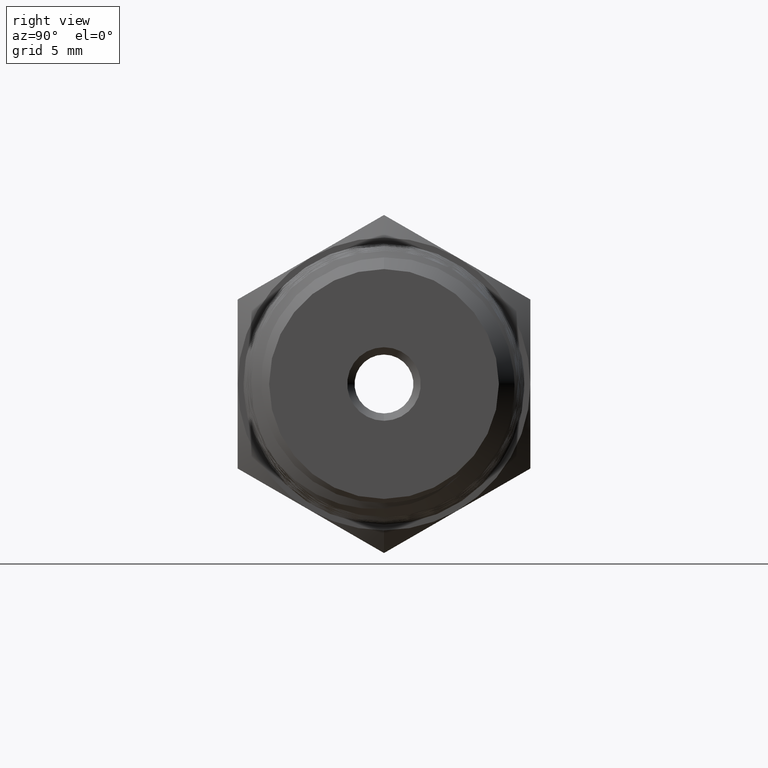
[diagram: clean part render]
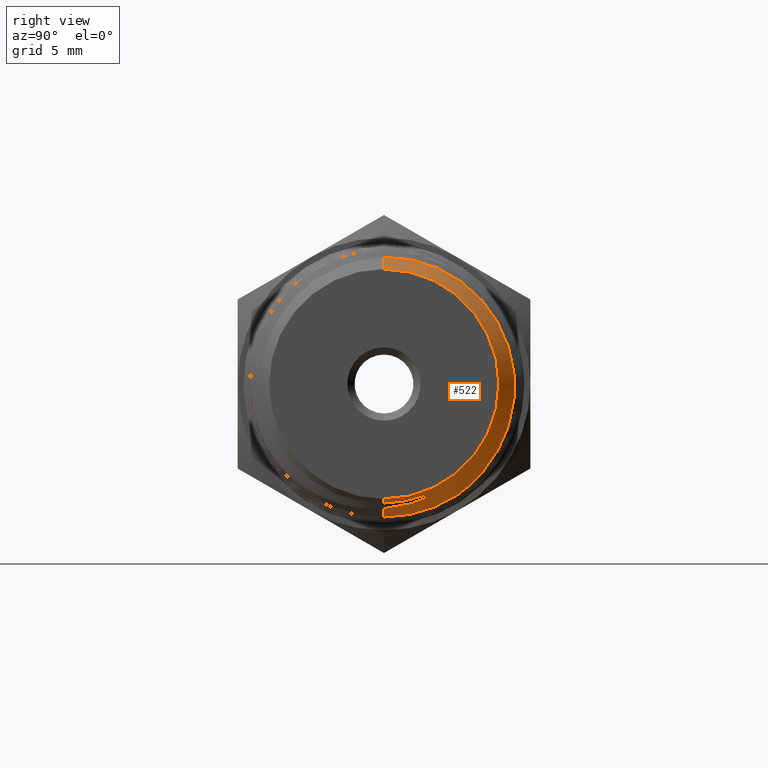
[diagram: same view with one face highlighted and labeled with its STEP entity id]
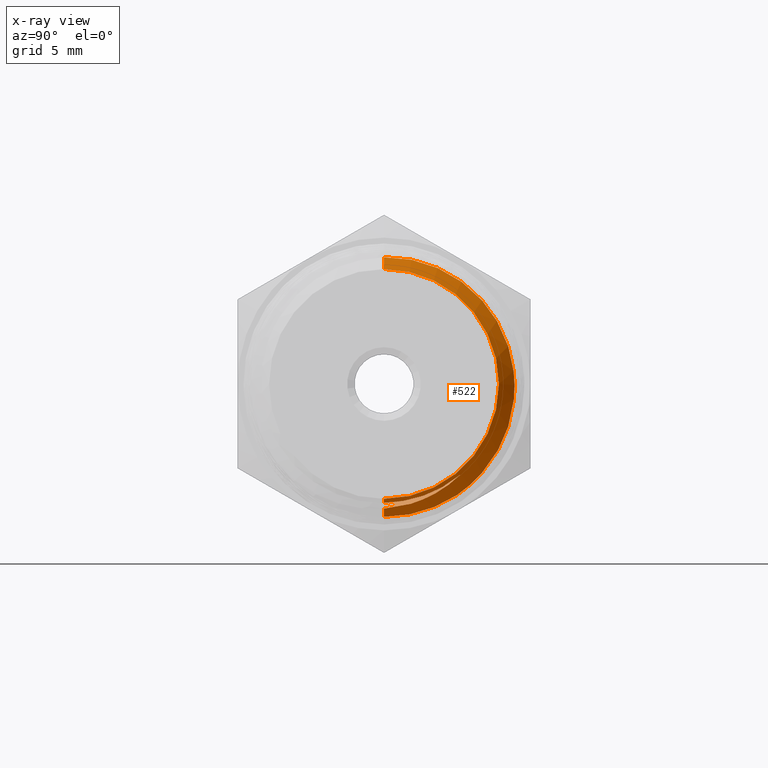
[diagram: x-ray of the same camera — body ghosted, the highlighted face saturated]
A machine part, right view. The second image highlights one B-rep face of the part: STEP entity #522.
The next image is the same camera in x-ray: the body ghosted, the highlighted face saturated — about 0% of this face is hidden behind the body in this view.
In plain terms, the highlighted conical surface has half-angle 45 deg.
Its self-contained STEP definition (entity closure, byte-faithful):
#33 = CARTESIAN_POINT ( 'NONE',  ( -0.04030060673841390217, 0.2491864924186022734, 0.2926378813395275613 ) ) ;
#151 = ORIENTED_EDGE ( 'NONE', *, *, #13604, .F. ) ;
#182 = CARTESIAN_POINT ( 'NONE',  ( -0.04659377315465841607, 0.3906197319101896159, 0.003791174174266546959 ) ) ;
#222 = CARTESIAN_POINT ( 'NONE',  ( -0.04888859972482670346, 0.3744851305482472248, -0.1189710544866498243 ) ) ;
#228 = B_SPLINE_CURVE_WITH_KNOTS ( 'NONE', 3,
 ( #2114, #13905, #1036, #6340, #8666, #5356, #11821, #6477, #7421, #990, #13952, #7513, #9595, #33, #9496, #4183, #11675, #5260, #2070, #9548, #9779, #13061, #8851, #12055, #182, #5591, #7700, #6617, #12103, #13200, #222, #10920, #3396, #6707, #7788, #308, #1267, #11006, #3354, #10872, #10964, #8764 ),
 .UNSPECIFIED., .F., .F.,
 ( 4, 2, 2, 2, 2, 2, 2, 2, 2, 2, 2, 2, 2, 2, 2, 2, 2, 2, 2, 2, 4 ),
 ( 0.03059194525146081631, 0.03137712472864505331, 0.03216230420582929378, 0.03373266316019777472, 0.03451784263738201519, 0.03530302211456625566, 0.03687338106893472967, 0.03844374002330321061, 0.04001409897767168461, 0.04158445793204016555, 0.04315481688640863955, 0.04472517584077712050, 0.04629553479514560144, 0.04708071427232984191, 0.04786589374951408238, 0.04943625270388256332, 0.05022143218106679685, 0.05100661165825104426, 0.05257697061261951826, 0.05414732956698799227, 0.05571768852135647321 ),
 .UNSPECIFIED. ) ;
#308 = CARTESIAN_POINT ( 'NONE',  ( -0.05082934280718694187, 0.3322672017545773571, -0.2133694554806749022 ) ) ;
#377 = CARTESIAN_POINT ( 'NONE',  ( -0.02166325693225363419, 0.1037695234988178367, -0.3507481977778851845 ) ) ;
#493 = CARTESIAN_POINT ( 'NONE',  ( -1.390232547146580598E-16, 4.041677008808863499E-17, -0.3434999999999999720 ) ) ;
#497 = CARTESIAN_POINT ( 'NONE',  ( -0.01093724804976844468, 0.05572696181799284554, -0.3500289538475765405 ) ) ;
#522 = ADVANCED_FACE ( 'NONE', ( #13951 ), #3871, .T. ) ;
#834 = CARTESIAN_POINT ( 'NONE',  ( -0.03512519437966415969, -1.088470684975604861E-16, 0.3786251943796643538 ) ) ;
#869 = CARTESIAN_POINT ( 'NONE',  ( -3.414809992080329023E-17, -3.791200677927629740E-33, 1.034064367020310434E-16 ) ) ;
#871 = ORIENTED_EDGE ( 'NONE', *, *, #11292, .F. ) ;
#990 = CARTESIAN_POINT ( 'NONE',  ( -0.03832131779553908657, 0.1612696905895363297, 0.3462483297272380689 ) ) ;
#1036 = CARTESIAN_POINT ( 'NONE',  ( -0.03553356370992067498, 0.02083672818344544861, 0.3786031149498791382 ) ) ;
#1083 = CARTESIAN_POINT ( 'NONE',  ( -0.01093724804976844468, 0.05572696181799284554, -0.3500289538475765405 ) ) ;
#1182 = VERTEX_POINT ( 'NONE', #4907 ) ;
#1267 = CARTESIAN_POINT ( 'NONE',  ( -0.05119880738211420035, 0.3209687871930754777, -0.2306298080186578725 ) ) ;
#1335 = DIRECTION ( 'NONE',  ( -0.7071067811865489050, -1.298934084353236847E-16, 0.7071067811865460184 ) ) ;
#1375 = CARTESIAN_POINT ( 'NONE',  ( 7.072705487305145467E-17, -3.791200677927629740E-33, 0.3435000000000001941 ) ) ;
#1408 = B_SPLINE_CURVE_WITH_KNOTS ( 'NONE', 3,
 ( #497, #8012, #1580, #5908 ),
 .UNSPECIFIED., .F., .F.,
 ( 4, 4 ),
 ( 0.000000000000000000, 0.001417107997962201073 ),
 .UNSPECIFIED. ) ;
#1469 = CARTESIAN_POINT ( 'NONE',  ( -0.01392559479671466940, 0.1967579360385992848, -0.2991500319060032553 ) ) ;
#1580 = CARTESIAN_POINT ( 'NONE',  ( -0.01172161582007858090, 0.01859020080757724930, -0.3552216158200782736 ) ) ;
#2070 = CARTESIAN_POINT ( 'NONE',  ( -0.04308187170701759799, 0.3418150149543751626, 0.1817563351020619056 ) ) ;
#2114 = CARTESIAN_POINT ( 'NONE',  ( -0.03512519437966415969, -1.088470684975604861E-16, 0.3786251943796643538 ) ) ;
#2278 = CIRCLE ( 'NONE', #13547, 0.3973881076167148918 ) ;
#2536 = VECTOR ( 'NONE', #1335, 39.37007874015748854 ) ;
#2543 = EDGE_CURVE ( 'NONE', #5152, #5169, #10383, .T. ) ;
#2603 = EDGE_CURVE ( 'NONE', #5648, #7325, #12832, .T. ) ;
#3232 = CARTESIAN_POINT ( 'NONE',  ( 7.072705487305150398E-17, -4.949542387868817801E-18, 0.3435000000000002496 ) ) ;
#3242 = CARTESIAN_POINT ( 'NONE',  ( -0.01211113930622502270, -3.628235616585349741E-17, -0.3556111393062247328 ) ) ;
#3265 = CARTESIAN_POINT ( 'NONE',  ( -0.01082672034998280117, 0.1766656570381449631, -0.3088191119013708463 ) ) ;
#3277 = VERTEX_POINT ( 'NONE', #3232 ) ;
#3354 = CARTESIAN_POINT ( 'NONE',  ( -0.05233483519599250317, 0.2819471108017557182, -0.2786154047594776029 ) ) ;
#3396 = CARTESIAN_POINT ( 'NONE',  ( -0.04967176585298522379, 0.3603147840324332773, -0.1576853039726890393 ) ) ;
#3423 = EDGE_CURVE ( 'NONE', #3277, #9002, #12446, .T. ) ;
#3554 = CARTESIAN_POINT ( 'NONE',  ( -0.02320799002363415492, 0.08377496720900971805, -0.3576381742715165069 ) ) ;
#3632 = CARTESIAN_POINT ( 'NONE',  ( -0.01855947295215877244, 0.1425570709624661148, -0.3334857590831016294 ) ) ;
#3685 = ORIENTED_EDGE ( 'NONE', *, *, #10786, .F. ) ;
#3824 = ORIENTED_EDGE ( 'NONE', *, *, #8363, .T. ) ;
#3871 = CONICAL_SURFACE ( 'NONE', #6432, 0.3435000000000000275, 0.7853981633974459475 ) ;
#4036 = VECTOR ( 'NONE', #4322, 39.37007874015748854 ) ;
#4140 = CARTESIAN_POINT ( 'NONE',  ( -1.390232547146580105E-16, 4.206661755071158813E-17, -0.3434999999999999165 ) ) ;
#4161 = DIRECTION ( 'NONE',  ( -3.053134055134053237E-16, 0.000000000000000000, -1.000000000000000000 ) ) ;
#4183 = CARTESIAN_POINT ( 'NONE',  ( -0.04148264045724359833, 0.2940110216749465821, 0.2493905619800215745 ) ) ;
#4322 = DIRECTION ( 'NONE',  ( -0.7071067811865493491, -4.329780281177457185E-17, -0.7071067811865455743 ) ) ;
#4409 = CARTESIAN_POINT ( 'NONE',  ( -0.05388810761671514876, -9.899084775737700313E-18, 1.198591983551632204E-16 ) ) ;
#4730 = CARTESIAN_POINT ( 'NONE',  ( -1.390232547146580105E-16, 4.206661755071158813E-17, -0.3434999999999999165 ) ) ;
#4744 = EDGE_CURVE ( 'NONE', #5169, #1182, #2278, .T. ) ;
#4907 = CARTESIAN_POINT ( 'NONE',  ( -0.05388810761671529448, 0.2181741977012518485, -0.3321405237736111959 ) ) ;
#5152 = VERTEX_POINT ( 'NONE', #12330 ) ;
#5169 = VERTEX_POINT ( 'NONE', #5907 ) ;
#5184 = ORIENTED_EDGE ( 'NONE', *, *, #3423, .F. ) ;
#5260 = CARTESIAN_POINT ( 'NONE',  ( -0.04268421239342090612, 0.3310991432607293117, 0.1998465037570916203 ) ) ;
#5356 = CARTESIAN_POINT ( 'NONE',  ( -0.03673324534147263259, 0.08249464495620717486, 0.3717489590352438533 ) ) ;
#5457 = CARTESIAN_POINT ( 'NONE',  ( -0.01090092528629496398, 0.1178037733599893722, -0.3346307213449989382 ) ) ;
#5493 = DIRECTION ( 'NONE',  ( -3.007597545875435086E-16, 0.000000000000000000, -1.000000000000000000 ) ) ;
#5591 = CARTESIAN_POINT ( 'NONE',  ( -0.04716491437343509757, 0.3898581829994952619, -0.02712787306494755107 ) ) ;
#5648 = VERTEX_POINT ( 'NONE', #12220 ) ;
#5907 = CARTESIAN_POINT ( 'NONE',  ( -0.05388810761671526672, 3.876692262546568802E-17, -0.3973881076167147808 ) ) ;
#5908 = CARTESIAN_POINT ( 'NONE',  ( -0.01211113930622502270, -3.628235616585349741E-17, -0.3556111393062247328 ) ) ;
#6312 = DIRECTION ( 'NONE',  ( -1.000000000000000000, -1.836970198721021306E-16, 3.053134055134053237E-16 ) ) ;
#6340 = CARTESIAN_POINT ( 'NONE',  ( -0.03594005999296892573, 0.04158863795596287605, 0.3772972167839771518 ) ) ;
#6396 = CARTESIAN_POINT ( 'NONE',  ( -0.01089390740658919589, 0.1328646563684411919, -0.3289379395411542450 ) ) ;
#6432 = AXIS2_PLACEMENT_3D ( 'NONE', #11697, #6312, #11793 ) ;
#6477 = CARTESIAN_POINT ( 'NONE',  ( -0.03771454844109568133, 0.1321812102770482389, 0.3577147957243693721 ) ) ;
#6617 = CARTESIAN_POINT ( 'NONE',  ( -0.04773506180432279811, 0.3870352827413255370, -0.05810687976132099253 ) ) ;
#6707 = CARTESIAN_POINT ( 'NONE',  ( -0.05006491648732609018, 0.3518651247201877164, -0.1766115475065730966 ) ) ;
#6716 = ORIENTED_EDGE ( 'NONE', *, *, #4744, .T. ) ;
#6776 = CARTESIAN_POINT ( 'NONE',  ( -0.02920456655433211618, -9.604153102725925531E-17, -0.3727045665543317066 ) ) ;
#6817 = CARTESIAN_POINT ( 'NONE',  ( -0.01236127934475715270, 0.2132604443011113515, -0.2856846834429576099 ) ) ;
#7113 = CARTESIAN_POINT ( 'NONE',  ( -0.01093724804976844468, 0.05572696181799284554, -0.3500289538475765405 ) ) ;
#7325 = VERTEX_POINT ( 'NONE', #7113 ) ;
#7336 = VERTEX_POINT ( 'NONE', #3242 ) ;
#7421 = CARTESIAN_POINT ( 'NONE',  ( -0.03791646629470977331, 0.1420090478418409297, 0.3541472170022263999 ) ) ;
#7461 = EDGE_CURVE ( 'NONE', #8589, #3277, #12155, .T. ) ;
#7475 = CARTESIAN_POINT ( 'NONE',  ( -0.01075693484395628952, 0.2285839789948817258, -0.2706424586643832453 ) ) ;
#7513 = CARTESIAN_POINT ( 'NONE',  ( -0.03912902502530326426, 0.1982749516817654545, 0.3278990138455385450 ) ) ;
#7700 = CARTESIAN_POINT ( 'NONE',  ( -0.04735412003127962427, 0.3891947773401027155, -0.03744615352524040264 ) ) ;
#7788 = CARTESIAN_POINT ( 'NONE',  ( -0.05025835607222127466, 0.3472195241701827029, -0.1859901659645665783 ) ) ;
#8012 = CARTESIAN_POINT ( 'NONE',  ( -0.01132940428097176620, 0.03716603481922798463, -0.3533810732441645674 ) ) ;
#8340 = ORIENTED_EDGE ( 'NONE', *, *, #7461, .F. ) ;
#8363 = EDGE_CURVE ( 'NONE', #8589, #7336, #9599, .T. ) ;
#8589 = VERTEX_POINT ( 'NONE', #493 ) ;
#8666 = CARTESIAN_POINT ( 'NONE',  ( -0.03614124754780261017, 0.05187846001273856839, 0.3762212590460447537 ) ) ;
#8764 = CARTESIAN_POINT ( 'NONE',  ( -0.05388810761671529448, 0.2181741977012518485, -0.3321405237736111959 ) ) ;
#8829 = CARTESIAN_POINT ( 'NONE',  ( -0.01701960165425226573, 0.1614783600321250678, -0.3230332700915234945 ) ) ;
#8851 = CARTESIAN_POINT ( 'NONE',  ( -0.04540806282609957667, 0.3839299277398810495, 0.06538963157650633240 ) ) ;
#8882 = CARTESIAN_POINT ( 'NONE',  ( -0.02623487595395632838, 0.04256378608696263777, -0.3678868868152155303 ) ) ;
#8933 = VECTOR ( 'NONE', #8952, 39.37007874015748854 ) ;
#8952 = DIRECTION ( 'NONE',  ( -0.7071067811865493491, -4.329780281177457185E-17, -0.7071067811865455743 ) ) ;
#9002 = VERTEX_POINT ( 'NONE', #834 ) ;
#9472 = DIRECTION ( 'NONE',  ( 1.000000000000000000, 1.836970198721021306E-16, -3.053134055134053237E-16 ) ) ;
#9496 = CARTESIAN_POINT ( 'NONE',  ( -0.04069318049514239477, 0.2650702729509506472, 0.2788703106361578032 ) ) ;
#9548 = CARTESIAN_POINT ( 'NONE',  ( -0.04384820837353460565, 0.3599435401111776289, 0.1445911779048497936 ) ) ;
#9569 = AXIS2_PLACEMENT_3D ( 'NONE', #869, #9472, #4161 ) ;
#9595 = CARTESIAN_POINT ( 'NONE',  ( -0.03952749263994180529, 0.2158195692367535501, 0.3171118186357956281 ) ) ;
#9599 = LINE ( 'NONE', #4730, #8933 ) ;
#9698 = CARTESIAN_POINT ( 'NONE',  ( -0.01090792052925147575, 0.08720747305892059820, -0.3438826305856256815 ) ) ;
#9779 = CARTESIAN_POINT ( 'NONE',  ( -0.04422826819853219876, 0.3674632134205699230, 0.1254192495141483177 ) ) ;
#10011 = B_SPLINE_CURVE_WITH_KNOTS ( 'NONE', 3,
 ( #6776, #12172, #8882, #3554, #377, #3632, #8829, #1469, #6817, #13182 ),
 .UNSPECIFIED., .F., .F.,
 ( 4, 2, 2, 2, 4 ),
 ( 0.009176671575732611719, 0.01079220157601291918, 0.01240773157629322665, 0.01402326157657353585, 0.01563879157685384158 ),
 .UNSPECIFIED. ) ;
#10383 = LINE ( 'NONE', #4140, #4036 ) ;
#10784 = CARTESIAN_POINT ( 'NONE',  ( -0.01091668053976309338, 0.07161603389705828437, -0.3474784802513048443 ) ) ;
#10786 = EDGE_CURVE ( 'NONE', #5152, #5648, #10011, .T. ) ;
#10872 = CARTESIAN_POINT ( 'NONE',  ( -0.05311950370296450452, 0.2516163479284144744, -0.3072974853083887958 ) ) ;
#10920 = CARTESIAN_POINT ( 'NONE',  ( -0.04947505098363612352, 0.3641462397696119124, -0.1480979731819167811 ) ) ;
#10964 = CARTESIAN_POINT ( 'NONE',  ( -0.05350962318908471238, 0.2354163118040889791, -0.3203618056061612873 ) ) ;
#11006 = CARTESIAN_POINT ( 'NONE',  ( -0.05195134477136173490, 0.2958179365188156607, -0.2632440629250386577 ) ) ;
#11292 = EDGE_CURVE ( 'NONE', #9002, #1182, #228, .T. ) ;
#11541 = ORIENTED_EDGE ( 'NONE', *, *, #2543, .T. ) ;
#11675 = CARTESIAN_POINT ( 'NONE',  ( -0.04188258831680580913, 0.3072190330102047007, 0.2335877286246664242 ) ) ;
#11697 = CARTESIAN_POINT ( 'NONE',  ( -3.414809992080329023E-17, -3.791200677927629740E-33, 1.034064367020310434E-16 ) ) ;
#11793 = DIRECTION ( 'NONE',  ( 3.053134055134053237E-16, 0.000000000000000000, 1.000000000000000000 ) ) ;
#11821 = CARTESIAN_POINT ( 'NONE',  ( -0.03711849138182386071, 0.1025704331935783364, 0.3671220562229870477 ) ) ;
#11915 = DIRECTION ( 'NONE',  ( 1.000000000000000000, 1.836970198721021306E-16, -3.053134055134053237E-16 ) ) ;
#12055 = CARTESIAN_POINT ( 'NONE',  ( -0.04620267583449534643, 0.3894912937303681155, 0.02435610111906039155 ) ) ;
#12103 = CARTESIAN_POINT ( 'NONE',  ( -0.04792726363854313970, 0.3855312574569654815, -0.06847278309711210542 ) ) ;
#12155 = CIRCLE ( 'NONE', #9569, 0.3435000000000000830 ) ;
#12172 = CARTESIAN_POINT ( 'NONE',  ( -0.02773241904916427802, 0.02118538913889251099, -0.3712324190491638753 ) ) ;
#12220 = CARTESIAN_POINT ( 'NONE',  ( -0.01075693484395628952, 0.2285839789948817258, -0.2706424586643832453 ) ) ;
#12330 = CARTESIAN_POINT ( 'NONE',  ( -0.02920456655433211618, -9.604153102725925531E-17, -0.3727045665543317066 ) ) ;
#12446 = LINE ( 'NONE', #1375, #2536 ) ;
#12832 = B_SPLINE_CURVE_WITH_KNOTS ( 'NONE', 3,
 ( #7475, #12833, #3265, #6396, #5457, #9698, #10784, #1083 ),
 .UNSPECIFIED., .F., .F.,
 ( 4, 2, 2, 4 ),
 ( 0.000000000000000000, 0.002452444087862206031, 0.003678666131793309046, 0.004904888175724412061 ),
 .UNSPECIFIED. ) ;
#12833 = CARTESIAN_POINT ( 'NONE',  ( -0.01077785431859281697, 0.2040060598619524157, -0.2914282934057040308 ) ) ;
#13061 = CARTESIAN_POINT ( 'NONE',  ( -0.04500643287712809137, 0.3794502560308585237, 0.08591125066518914832 ) ) ;
#13182 = CARTESIAN_POINT ( 'NONE',  ( -0.01075693484395628952, 0.2285839789948817258, -0.2706424586643832453 ) ) ;
#13200 = CARTESIAN_POINT ( 'NONE',  ( -0.04850266940341671495, 0.3798443603379960121, -0.09906883398045261691 ) ) ;
#13235 = ORIENTED_EDGE ( 'NONE', *, *, #2603, .F. ) ;
#13547 = AXIS2_PLACEMENT_3D ( 'NONE', #4409, #11915, #5493 ) ;
#13604 = EDGE_CURVE ( 'NONE', #7325, #7336, #1408, .T. ) ;
#13747 = EDGE_LOOP ( 'NONE', ( #8340, #3824, #151, #13235, #3685, #11541, #6716, #871, #5184 ) ) ;
#13905 = CARTESIAN_POINT ( 'NONE',  ( -0.03532809192687708794, 0.01036561566551343419, 0.3788280919268771640 ) ) ;
#13951 = FACE_OUTER_BOUND ( 'NONE', #13747, .T. ) ;
#13952 = CARTESIAN_POINT ( 'NONE',  ( -0.03852375079180776762, 0.1706811719820782169, 0.3419305791213073653 ) ) ;